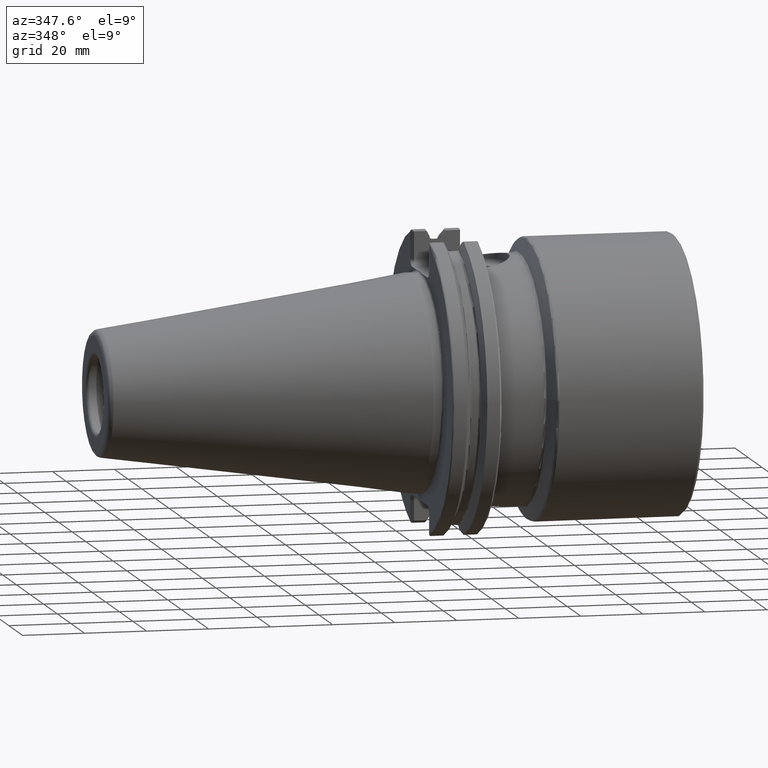
[diagram: clean part render]
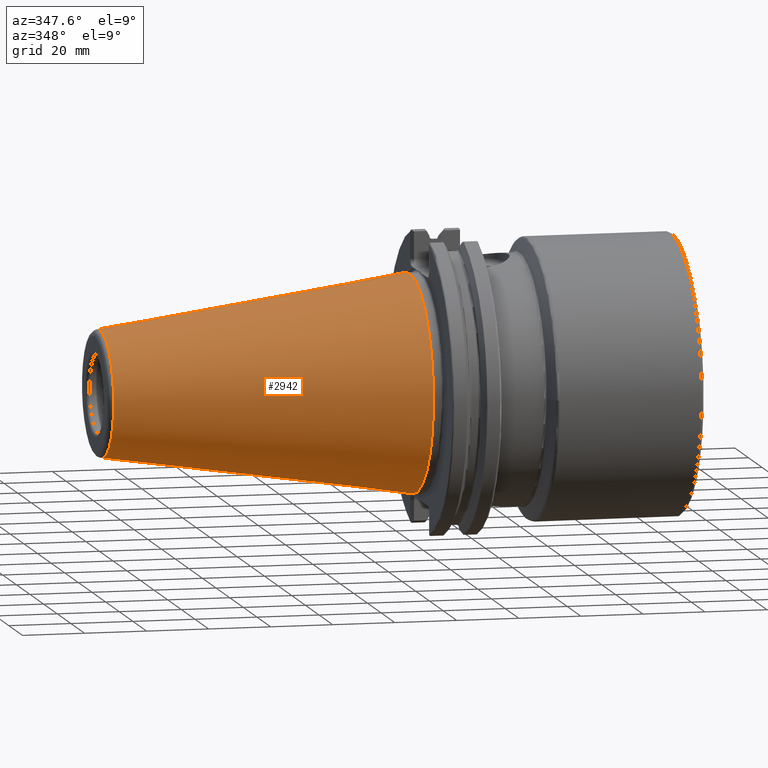
[diagram: same view with one face highlighted and labeled with its STEP entity id]
A machine part, auxiliary view. The second image highlights one B-rep face of the part: STEP entity #2942.
In plain terms, the highlighted conical surface has half-angle 8.297 deg.
Its self-contained STEP definition (entity closure, byte-faithful):
#8 = CARTESIAN_POINT ( 'NONE',  ( -99.88861378614345200, 0.0000000000000000000, 20.35791048952072300 ) ) ;
#116 = DIRECTION ( 'NONE',  ( 1.000000000000000000, 0.0000000000000000000, 0.0000000000000000000 ) ) ;
#565 = VERTEX_POINT ( 'NONE', #2277 ) ;
#668 = CARTESIAN_POINT ( 'NONE',  ( -99.88861378614345200, 0.0000000000000000000, 0.0000000000000000000 ) ) ;
#972 = EDGE_CURVE ( 'NONE', #1454, #1454, #2503, .T. ) ;
#1125 = EDGE_CURVE ( 'NONE', #565, #565, #2201, .T. ) ;
#1232 = DIRECTION ( 'NONE',  ( 0.0000000000000000000, 0.0000000000000000000, -1.000000000000000000 ) ) ;
#1454 = VERTEX_POINT ( 'NONE', #8 ) ;
#1507 = FACE_OUTER_BOUND ( 'NONE', #3647, .T. ) ;
#1618 = CARTESIAN_POINT ( 'NONE',  ( 0.0000000000000000000, 0.0000000000000000000, 0.0000000000000000000 ) ) ;
#1856 = CARTESIAN_POINT ( 'NONE',  ( 0.0000000000000000000, 0.0000000000000000000, 0.0000000000000000000 ) ) ;
#2118 = AXIS2_PLACEMENT_3D ( 'NONE', #1856, #3738, #2246 ) ;
#2197 = AXIS2_PLACEMENT_3D ( 'NONE', #668, #3336, #3308 ) ;
#2201 = CIRCLE ( 'NONE', #2118, 34.92499999999999700 ) ;
#2246 = DIRECTION ( 'NONE',  ( 0.0000000000000000000, 0.0000000000000000000, 1.000000000000000000 ) ) ;
#2277 = CARTESIAN_POINT ( 'NONE',  ( 0.0000000000000000000, 0.0000000000000000000, 34.92499999999999700 ) ) ;
#2407 = ORIENTED_EDGE ( 'NONE', *, *, #972, .F. ) ;
#2503 = CIRCLE ( 'NONE', #2197, 20.35791048952072300 ) ;
#2515 = FACE_BOUND ( 'NONE', #2948, .T. ) ;
#2942 = ADVANCED_FACE ( 'NONE', ( #2515, #1507 ), #3806, .T. ) ;
#2948 = EDGE_LOOP ( 'NONE', ( #2407 ) ) ;
#3308 = DIRECTION ( 'NONE',  ( 0.0000000000000000000, 0.0000000000000000000, 1.000000000000000000 ) ) ;
#3336 = DIRECTION ( 'NONE',  ( -1.000000000000000000, -0.0000000000000000000, -0.0000000000000000000 ) ) ;
#3647 = EDGE_LOOP ( 'NONE', ( #4716 ) ) ;
#3738 = DIRECTION ( 'NONE',  ( -1.000000000000000000, -0.0000000000000000000, -0.0000000000000000000 ) ) ;
#3797 = AXIS2_PLACEMENT_3D ( 'NONE', #1618, #116, #1232 ) ;
#3806 = CONICAL_SURFACE ( 'NONE', #3797, 34.92499999999999700, 0.1448124982389392400 ) ;
#4716 = ORIENTED_EDGE ( 'NONE', *, *, #1125, .T. ) ;